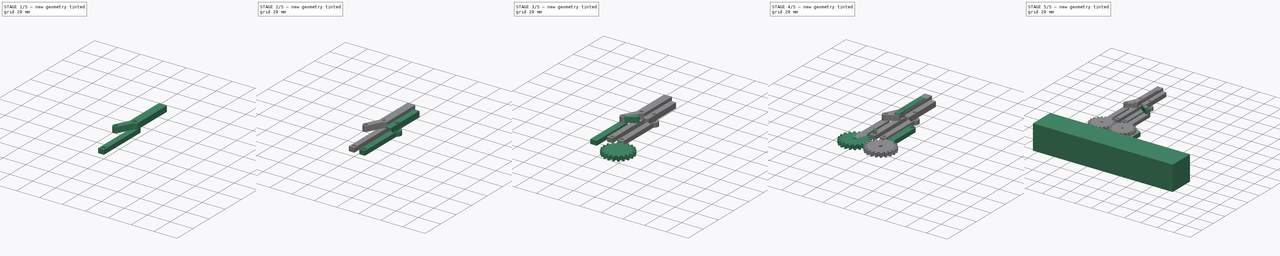
[diagram: build sequence overview — one tinted view per stage of 5, left to right]
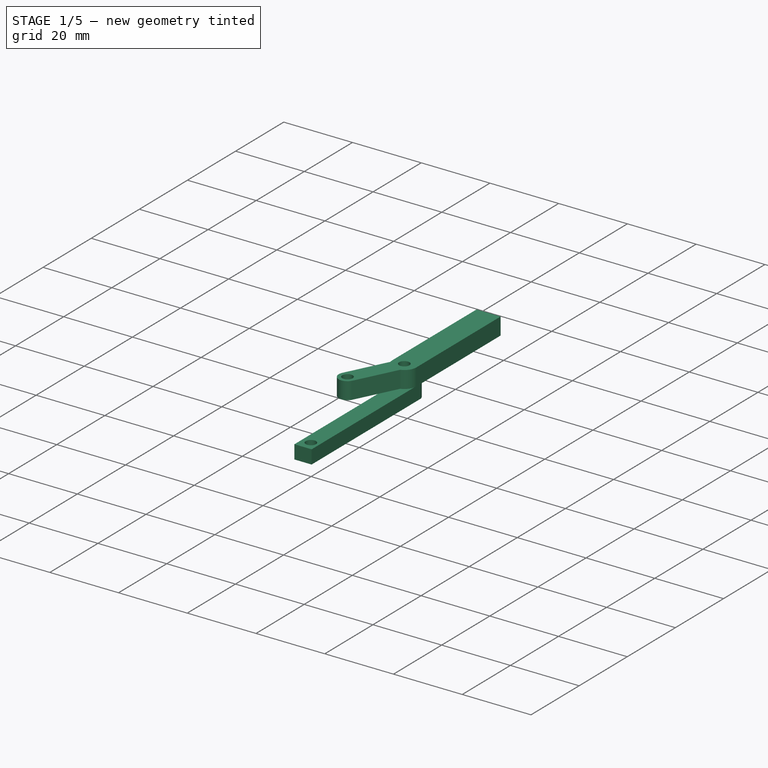
[diagram: stage 1 of 5 — iso view after this stage's code; geometry added in this stage tinted green]
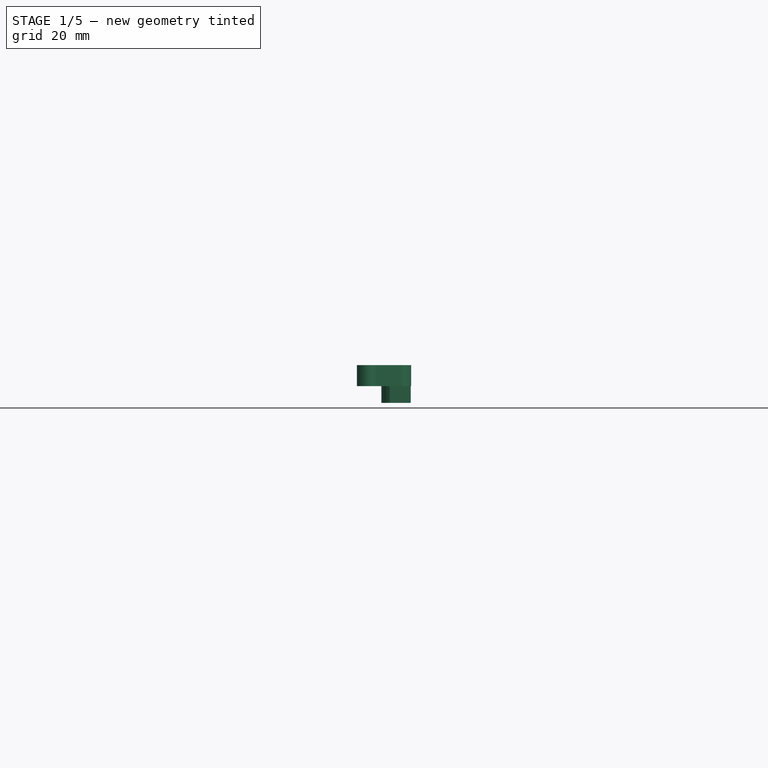
[diagram: stage 1 of 5 — front view after this stage's code; geometry added in this stage tinted green]
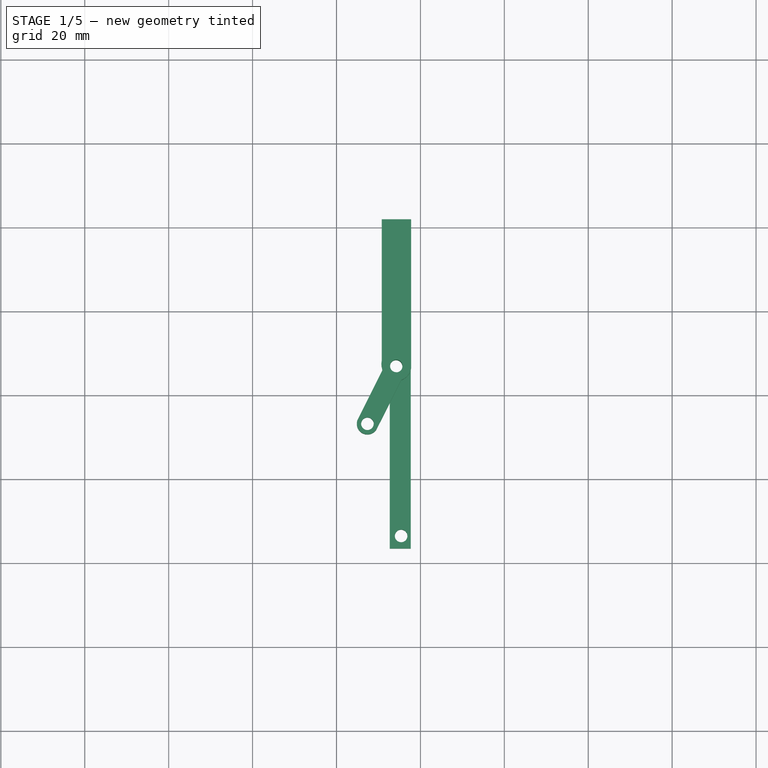
[diagram: stage 1 of 5 — top view after this stage's code; geometry added in this stage tinted green]
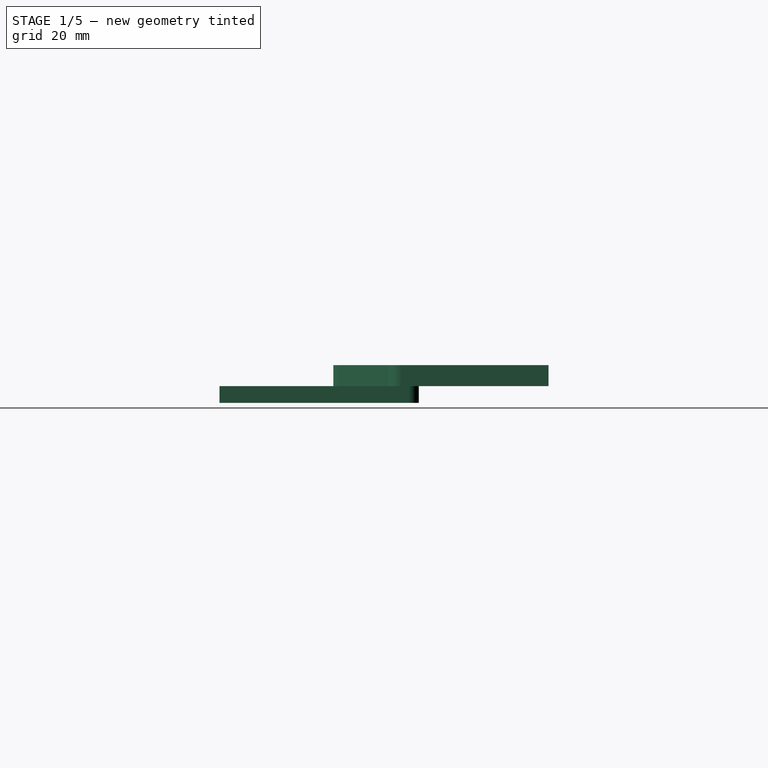
[diagram: stage 1 of 5 — right view after this stage's code; geometry added in this stage tinted green]
FCSTD DOCUMENT  (FreeCAD 0.19R24291 (Git))
Label: pinza_paralela_design_v2
License: All rights reserved
LicenseURL: http://en.wikipedia.org/wiki/All_rights_reserved
objects: Part::Cut×23, Part::Mirroring×11, Part::Extrusion×10, Sketcher::SketchObject×9, Part::Cylinder×9, Part::MultiFuse×5, Part::Part2DObjectPython×1, Part::Box×1
note: 69 computed .brp shape members not serialized (recipe doc carries the construction recipe); baked Part::Feature solids carry a one-line shape summary decoded from their .brp

FEATURE [Sketcher::SketchObject] Sketch006  label="Sk Union falanges002"
  FullyConstrained = false
  Placement = pos=(0,0,12) rot=(0,0,1;0rad)
  sketch-geometry (6):
    g0: LineSegment StartX=14.998 StartY=29.2311 StartZ=0 EndX=22.8365 EndY=15.9752 EndZ=0
    g1: LineSegment StartX=10.6425 StartY=26.6556 StartZ=0 EndX=18.481 EndY=13.3997 EndZ=0
    g2: ArcOfCircle CenterX=12.8203 CenterY=27.9434 CenterZ=0 NormalX=0 NormalY=0 NormalZ=1 AngleXU=0 Radius=2.53 StartAngle=0.534014 EndAngle=3.67561
    g3: ArcOfCircle CenterX=20.6588 CenterY=14.6875 CenterZ=0 NormalX=0 NormalY=0 NormalZ=1 AngleXU=0 Radius=2.53 StartAngle=3.67561 EndAngle=6.8172
    g4: Circle CenterX=12.8203 CenterY=27.9434 CenterZ=0 NormalX=0 NormalY=0 NormalZ=1 AngleXU=0 Radius=1.5
    g5: Circle CenterX=20.6588 CenterY=14.6875 CenterZ=0 NormalX=0 NormalY=0 NormalZ=1 AngleXU=0 Radius=1.5
  constraints (11):
    c: Distance(g0) = 15.4
    c: Parallel(g1,g0)
    c: Radius(g3) = 2.53
    c: Tangent(g0,g3) = 1.5708
    c: Tangent(g2,g0) = 1.5708
    c: Tangent(g2,g1) = -1.5708
    c: Tangent(g3,g1) = -1.5708
    c: Coincident(g4,g2)
    c: Coincident(g5,g3)
    c: Radius(g5) = 1.5
    c: Radius(g4) = 1.5
FEATURE [Part::Extrusion] Extrude008  label="extrude union der"
  Base = -> Sketch006
  Dir = (0,0,1)
  DirMode = 2
  FaceMakerClass = Part::FaceMakerBullseye
  LengthFwd = 5
  LengthRev = 0
  Placement = pos=(-3.80502,39.4438,-2) rot=(0,0,-1;0.069813rad)
  Solid = true
  Symmetric = false
FEATURE [Sketcher::SketchObject] Sketch007  label="Sk_dedos001"
  FullyConstrained = true
  sketch-geometry (5):
    g0: LineSegment StartX=-3.5 StartY=17.5 StartZ=0 EndX=3.5 EndY=17.5 EndZ=0
    g1: LineSegment StartX=3.5 StartY=17.5 StartZ=0 EndX=3.5 EndY=-17.5 EndZ=0
    g2: LineSegment StartX=-3.5 StartY=-17.5 StartZ=0 EndX=-3.5 EndY=17.5 EndZ=0
    g3: ArcOfCircle CenterX=0 CenterY=-17.5 CenterZ=0 NormalX=0 NormalY=0 NormalZ=1 AngleXU=0 Radius=3.5 StartAngle=3.14159 EndAngle=6.28319
    g4: Circle CenterX=0 CenterY=-17.5 CenterZ=0 NormalX=0 NormalY=0 NormalZ=1 AngleXU=0 Radius=1.65
  constraints (14):
    c: Coincident(g0,g1)
    c: Coincident(g2,g0)
    c: Horizontal(g0)
    c: Vertical(g1)
    c: Vertical(g2)
    c: DistanceY(g1,g1) = 35
    c: Coincident(g3,g1)
    c: DistanceX(g0,g0) = 7
    c: Symmetric(g1,g0,g-1)
    c: Angle(g3) = 3.14159
    c: Coincident(g3,g2)
    c: Equal(g2,g1)
    c: Coincident(g4,g3)
    c: Diameter(g4) = 3.3
FEATURE [Part::Extrusion] Extrude009  label="Dedo der"
  Base = -> Sketch007
  Dir = (0,0,1)
  DirMode = 2
  FaceMakerClass = Part::FaceMakerBullseye
  LengthFwd = 5
  LengthRev = 0
  Placement = pos=(10.9,83.9,10) rot=(0,0,1;0rad)
  Solid = true
  Symmetric = false
FEATURE [Part::MultiFuse] Fusion002  label="dedo_der completo"
  Placement = pos=(-5.2,0.5,-1) rot=(0,0,1;0rad)
  Refine = true
  Shapes = -> [Extrude009,Extrude008]
FEATURE [Part::Cylinder] Cylinder006
  Angle = 360
  AttacherType = Attacher::AttachEngine3D
  Height = 15
  Placement = pos=(4.5,26.5,-2) rot=(0,0,1;0rad)
  Radius = 1.5
FEATURE [Sketcher::SketchObject] Sketch008  label="sk_Falange003"
  FullyConstrained = false
  sketch-geometry (4):
    g0: LineSegment StartX=50.6953 StartY=0 StartZ=0 EndX=50.6953 EndY=45 EndZ=0
    g1: LineSegment StartX=55.6953 StartY=0 StartZ=0 EndX=55.6953 EndY=45 EndZ=0
    g2: LineSegment StartX=50.6953 StartY=0 StartZ=0 EndX=55.6953 EndY=0 EndZ=0
    g3: ArcOfCircle CenterX=53.1953 CenterY=45 CenterZ=0 NormalX=0 NormalY=0 NormalZ=1 AngleXU=0 Radius=2.5 StartAngle=5.8273e-06 EndAngle=3.14159
  constraints (12):
    c: Vertical(g0)
    c: Vertical(g1)
    c: Coincident(g2,g0)
    c: Horizontal(g2)
    c: Equal(g0,g1)
    c: Coincident(g2,g1)
    c: Distance(g0) = 45
    c: PointOnObject(g0,g-1)
    c: DistanceX(g2,g2) = 5
    c: Coincident(g3,g0)
    c: Coincident(g3,g1)
    c: Radius(g3) = 2.5
FEATURE [Part::Cylinder] Cylinder007  label="Tornillo002"
  Angle = 360
  AttacherType = Attacher::AttachEngine3D
  Height = 20
  Placement = pos=(5.7,66.9,2) rot=(0,0,1;0rad)
  Radius = 1.5
FEATURE [Part::Extrusion] Extrude010  label="Falange_interno002"
  Base = -> Sketch008
  Dir = (0,0,1)
  DirMode = 2
  FaceMakerClass = Part::FaceMakerBullseye
  LengthFwd = 4
  LengthRev = 0
  Placement = pos=(-48.5,23.5,5) rot=(0,0,1;0rad)
  Solid = true
  Symmetric = false
FEATURE [Part::Cut] Cut020  label="Falange interna der tornillo001"
  Base = -> Extrude010
  Refine = true
  Tool = -> Cylinder006
FEATURE [Part::Cut] Cut021  label="Fal interna der001"
  Base = -> Cut020
  Refine = true
  Tool = -> Cylinder007
FEATURE [Part::Cylinder] Cylinder008
  Angle = 360
  AttacherType = Attacher::AttachEngine3D
  Height = 4
  Placement = pos=(5.7,67.5,5) rot=(0,0,1;0rad)
  Radius = 3.5
FEATURE [Part::MultiFuse] Fusion004  label="Palo interno der001"
  Refine = true
  Shapes = -> [Cut021,Cylinder008]
FEATURE [Part::Cut] Cut022  label="Palo dentro izq tornillo"
  Base = -> Fusion004
  Placement = pos=(-0.1,0,14) rot=(0,1,0;3.14159rad)
  Refine = true
  Tool = -> Cylinder007
FEATURE [Part::Mirroring] Part__Mirroring010  label="dedo_der completo (Mirror #11)"
  Base = (0,0,0)
  Normal = (1,0,0)
  Source = -> Fusion002
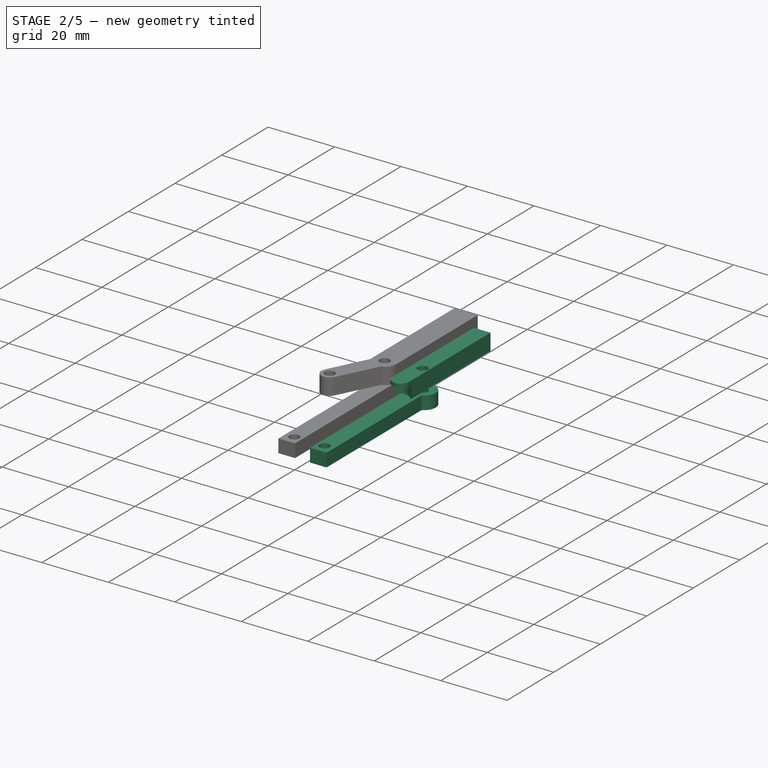
[diagram: stage 2 of 5 — iso view after this stage's code; geometry added in this stage tinted green]
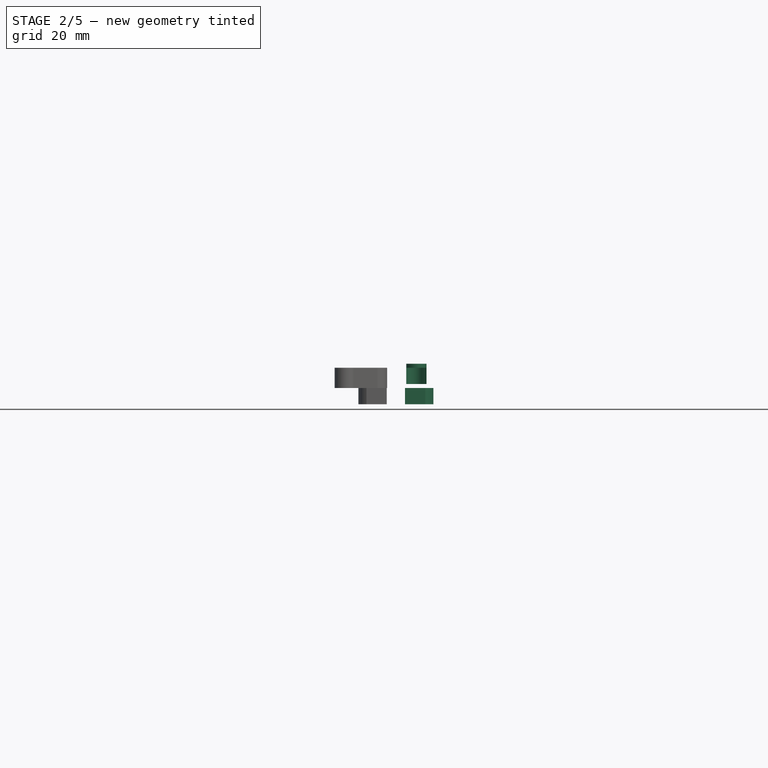
[diagram: stage 2 of 5 — front view after this stage's code; geometry added in this stage tinted green]
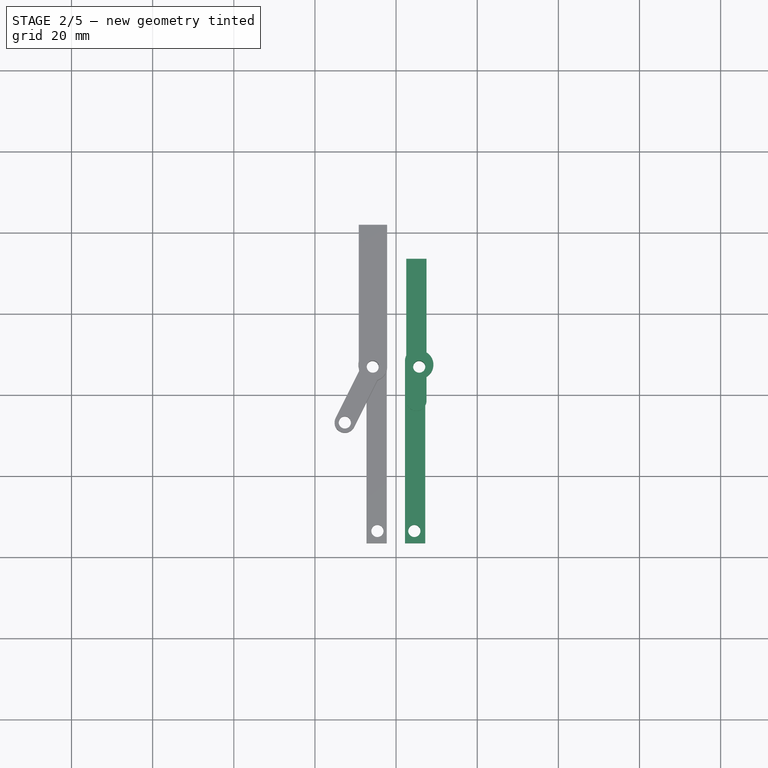
[diagram: stage 2 of 5 — top view after this stage's code; geometry added in this stage tinted green]
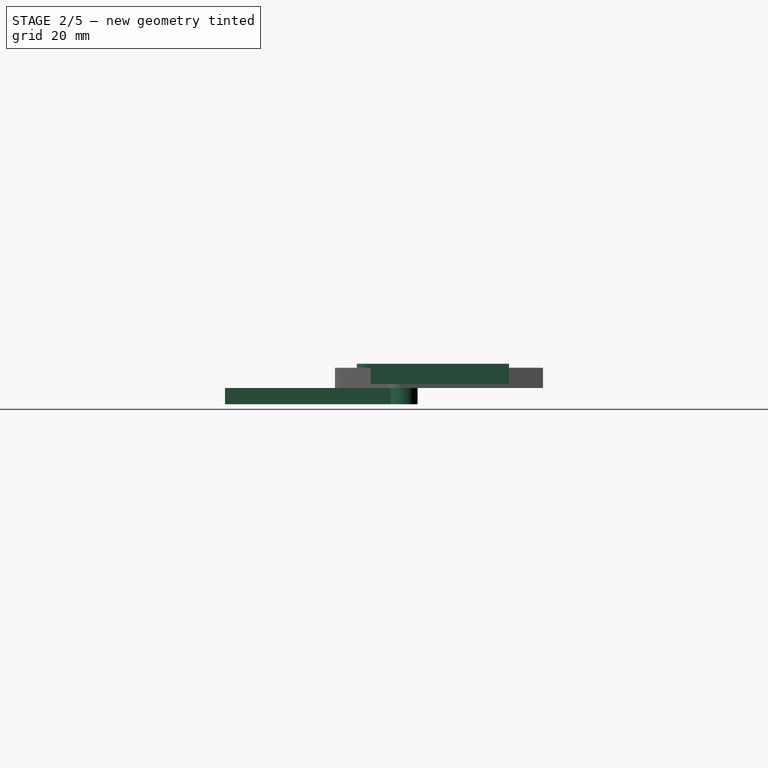
[diagram: stage 2 of 5 — right view after this stage's code; geometry added in this stage tinted green]
FEATURE [Sketcher::SketchObject] Sketch002  label="sk_Falange002"
  FullyConstrained = false
  sketch-geometry (4):
    g0: LineSegment StartX=50.6953 StartY=0 StartZ=0 EndX=50.6953 EndY=45 EndZ=0
    g1: LineSegment StartX=55.6953 StartY=0 StartZ=0 EndX=55.6953 EndY=45 EndZ=0
    g2: LineSegment StartX=50.6953 StartY=0 StartZ=0 EndX=55.6953 EndY=0 EndZ=0
    g3: ArcOfCircle CenterX=53.1953 CenterY=45 CenterZ=0 NormalX=0 NormalY=0 NormalZ=1 AngleXU=0 Radius=2.5 StartAngle=5.8273e-06 EndAngle=3.14159
  constraints (12):
    c: Vertical(g0)
    c: Vertical(g1)
    c: Coincident(g2,g0)
    c: Horizontal(g2)
    c: Equal(g0,g1)
    c: Coincident(g2,g1)
    c: Distance(g0) = 45
    c: PointOnObject(g0,g-1)
    c: DistanceX(g2,g2) = 5
    c: Coincident(g3,g0)
    c: Coincident(g3,g1)
    c: Radius(g3) = 2.5
FEATURE [Part::Extrusion] Extrude004  label="Falange_interno1"
  Base = -> Sketch002
  Dir = (0,0,1)
  DirMode = 2
  FaceMakerClass = Part::FaceMakerBullseye
  LengthFwd = 4
  LengthRev = 0
  Placement = pos=(-48.5,23.5,5) rot=(0,0,1;0rad)
  Solid = true
  Symmetric = false
FEATURE [Sketcher::SketchObject] Sketch004  label="Sk_dedos"
  FullyConstrained = true
  sketch-geometry (4):
    g0: LineSegment StartX=-2.5 StartY=17.5 StartZ=0 EndX=2.5 EndY=17.5 EndZ=0
    g1: LineSegment StartX=2.5 StartY=17.5 StartZ=0 EndX=2.5 EndY=-17.5 EndZ=0
    g2: LineSegment StartX=-2.5 StartY=-17.5 StartZ=0 EndX=-2.5 EndY=17.5 EndZ=0
    g3: ArcOfCircle CenterX=0 CenterY=-17.5 CenterZ=0 NormalX=0 NormalY=0 NormalZ=1 AngleXU=0 Radius=2.5 StartAngle=3.14159 EndAngle=6.28319
  constraints (12):
    c: Coincident(g0,g1)
    c: Coincident(g2,g0)
    c: Horizontal(g0)
    c: Vertical(g1)
    c: Vertical(g2)
    c: DistanceY(g1,g1) = 35
    c: Coincident(g3,g1)
    c: DistanceX(g0,g0) = 5
    c: Symmetric(g1,g0,g-1)
    c: Angle(g3) = 3.14159
    c: Coincident(g3,g2)
    c: Equal(g2,g1)
FEATURE [Part::Extrusion] Extrude006  label="Dedo"
  Base = -> Sketch004
  Dir = (0,0,1)
  DirMode = 2
  FaceMakerClass = Part::FaceMakerBullseye
  LengthFwd = 5
  LengthRev = 0
  Placement = pos=(5,76,10) rot=(0,0,1;0rad)
  Solid = true
  Symmetric = false
FEATURE [Sketcher::SketchObject] Sketch005  label="Sk Union falanges001"
  FullyConstrained = true
  Placement = pos=(0,0,12) rot=(0,0,1;0rad)
  sketch-geometry (4):
    g0: LineSegment StartX=6.26584 StartY=59.9849 StartZ=0 EndX=14.1491 EndY=54.8648 EndZ=0
    g1: LineSegment StartX=3.43221 StartY=55.9174 StartZ=0 EndX=11.3154 EndY=50.7973 EndZ=0
    g2: ArcOfCircle CenterX=4.58128 CenterY=58.1376 CenterZ=0 NormalX=0 NormalY=0 NormalZ=1 AngleXU=0 Radius=2.5 StartAngle=0.831422 EndAngle=4.23481
    g3: ArcOfCircle CenterX=13 CenterY=52.6446 CenterZ=0 NormalX=0 NormalY=0 NormalZ=1 AngleXU=0 Radius=2.5 StartAngle=3.97301 EndAngle=7.37641
  constraints (11):
    c: Equal(g1,g0)
    c: Coincident(g2,g1)
    c: Coincident(g2,g0)
    c: Coincident(g3,g1)
    c: Coincident(g3,g0)
    c: Distance(g0) = 9.4
    c: Equal(g3,g2)
    c: Block(g0)
    c: Block(g3)
    c: Block(g1)
    c: Block(g2)
FEATURE [Part::Extrusion] Extrude007  label="Union falange001"
  Base = -> Sketch005
  Dir = (0,0,1)
  DirMode = 2
  FaceMakerClass = Part::FaceMakerBullseye
  LengthFwd = 5
  LengthRev = 0
  Placement = pos=(0.18891,0.183964,-3) rot=(0,0,1;0rad)
  Solid = true
  Symmetric = false
FEATURE [Part::Cylinder] Cylinder002
  Angle = 360
  AttacherType = Attacher::AttachEngine3D
  Height = 15
  Placement = pos=(4.5,26.5,-2) rot=(0,0,1;0rad)
  Radius = 1.5
FEATURE [Part::Cut] Cut006  label="Falange interna der tornillo"
  Base = -> Extrude004
  Refine = true
  Tool = -> Cylinder002
FEATURE [Part::Cylinder] Cylinder004  label="Tornillo001"
  Angle = 360
  AttacherType = Attacher::AttachEngine3D
  Height = 20
  Placement = pos=(5.7,66.9,2) rot=(0,0,1;0rad)
  Radius = 1.5
FEATURE [Part::Cut] Cut015  label="Fal interna der"
  Base = -> Cut006
  Refine = true
  Tool = -> Cylinder004
FEATURE [Part::Cut] Cut  label="Dedo ajustado"
  Base = -> Extrude006
  Refine = true
  Tool = -> Extrude007
FEATURE [Part::Cut] Cut014  label="dedo der "
  Base = -> Cut
  Refine = true
  Tool = -> Cylinder004
FEATURE [Part::Cylinder] Cylinder005
  Angle = 360
  AttacherType = Attacher::AttachEngine3D
  Height = 4
  Placement = pos=(5.7,67.5,5) rot=(0,0,1;0rad)
  Radius = 3.5
FEATURE [Part::MultiFuse] Fusion003  label="Palo interno der"
  Refine = true
  Shapes = -> [Cut015,Cylinder005]
FEATURE [Part::Cut] Cut019  label="Palo dentro der tornillo"
  Base = -> Fusion003
  Refine = true
  Tool = -> Cylinder004
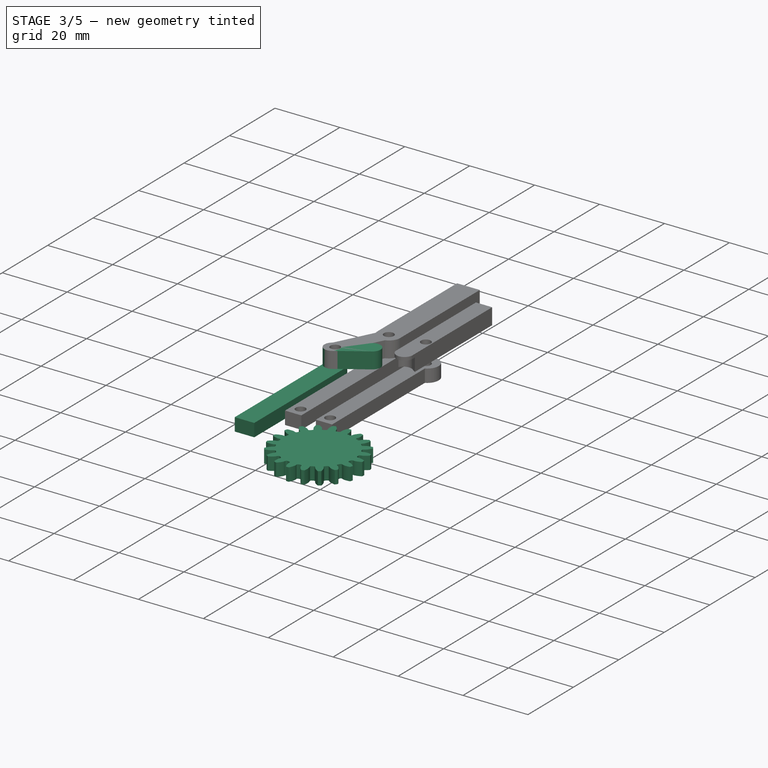
[diagram: stage 3 of 5 — iso view after this stage's code; geometry added in this stage tinted green]
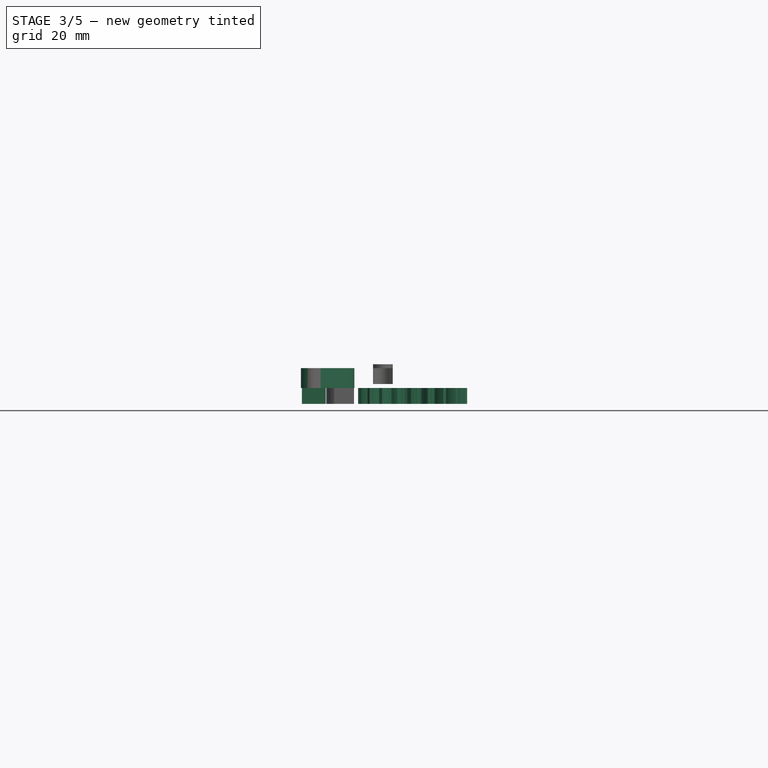
[diagram: stage 3 of 5 — front view after this stage's code; geometry added in this stage tinted green]
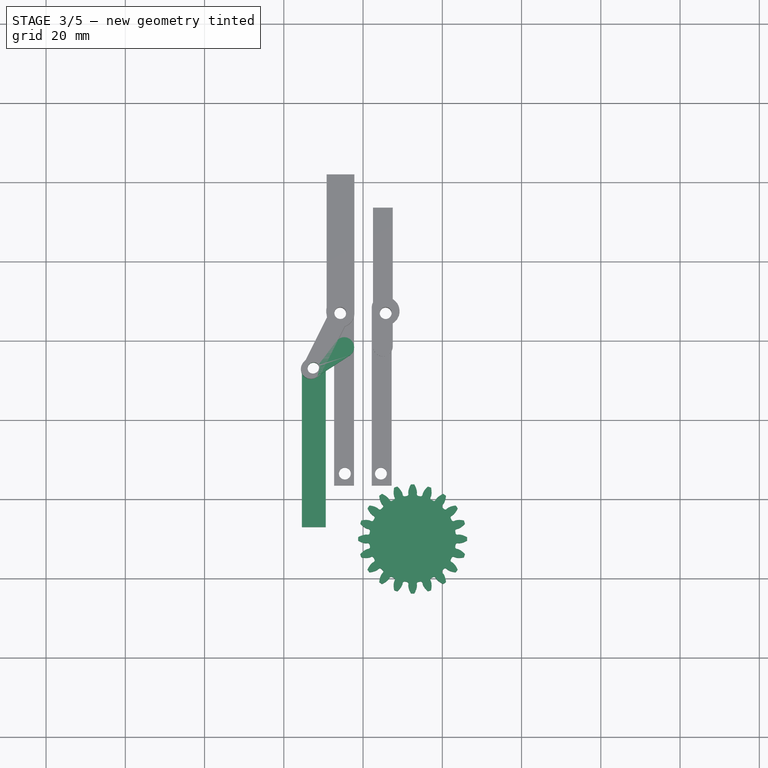
[diagram: stage 3 of 5 — top view after this stage's code; geometry added in this stage tinted green]
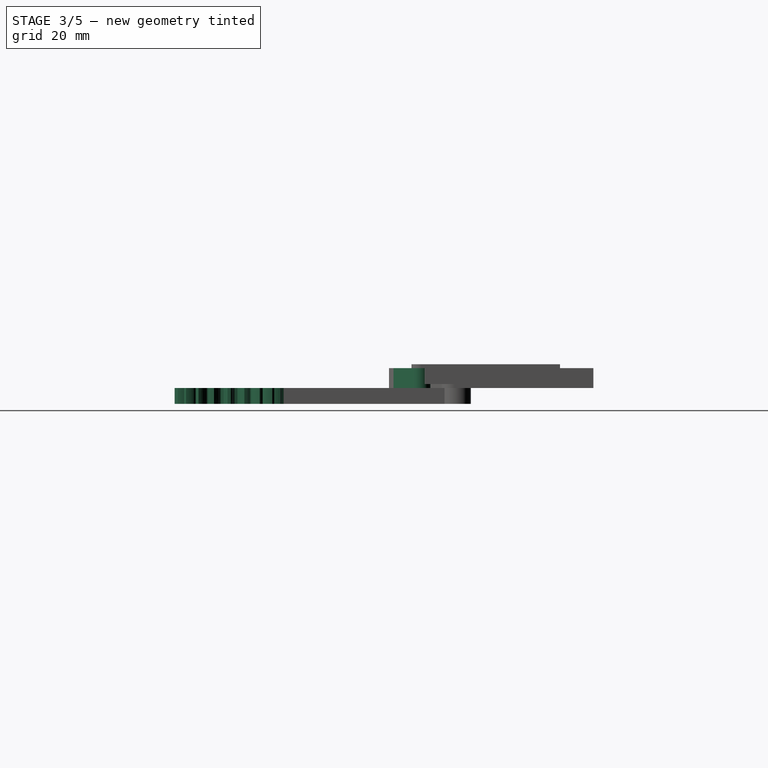
[diagram: stage 3 of 5 — right view after this stage's code; geometry added in this stage tinted green]
FEATURE [Sketcher::SketchObject] Sketch001  label="Sketch base"
  FullyConstrained = true
  sketch-geometry (6):
    g0: LineSegment StartX=-27.5 StartY=-20 StartZ=0 EndX=-27.5 EndY=20 EndZ=0
    g1: LineSegment StartX=-27.5 StartY=20 StartZ=0 EndX=-10 EndY=30.1036 EndZ=0
    g2: LineSegment StartX=-10 StartY=30.1036 StartZ=0 EndX=10 EndY=30.1036 EndZ=0
    g3: LineSegment StartX=10 StartY=30.1036 StartZ=0 EndX=27.5 EndY=20 EndZ=0
    g4: LineSegment StartX=27.5 StartY=20 StartZ=0 EndX=27.5 EndY=-20 EndZ=0
    g5: LineSegment StartX=-27.5 StartY=-20 StartZ=0 EndX=27.5 EndY=-20 EndZ=0
  constraints (17):
    c: Vertical(g0)
    c: Coincident(g1,g0)
    c: Coincident(g2,g1)
    c: Horizontal(g2)
    c: Coincident(g3,g2)
    c: Coincident(g4,g3)
    c: Equal(g0,g4)
    c: Equal(g1,g3)
    c: Vertical(g4)
    c: Coincident(g5,g0)
    c: Coincident(g5,g4)
    c: DistanceX(g5,g5) = 55
    c: DistanceY(g0,g0) = 40
    c: Parallel(g2,g5)
    c: Symmetric(g0,g4,g-1)
    c: DistanceX(g2,g2) = 20
    c: Angle(g3,g4) = 2.0944
FEATURE [Part::Extrusion] Extrude003  label="Falange1"
  Base = -> Sketch
  Dir = (0,0,1)
  DirMode = 2
  FaceMakerClass = Part::FaceMakerBullseye
  LengthFwd = 4
  LengthRev = 0
  Placement = pos=(-62.5,13,5) rot=(0,0,1;0rad)
  Solid = true
  Symmetric = false
FEATURE [Part::Mirroring] Part__Mirroring001  label="Falange1 (Mirror #2)"
  Base = (0,0,0)
  Normal = (1,0,0)
  Source = -> Extrude003
FEATURE [Sketcher::SketchObject] Sketch003  label="Sk Union falanges"
  FullyConstrained = true
  Placement = pos=(0,0,12) rot=(0,0,1;0rad)
  sketch-geometry (4):
    g0: LineSegment StartX=6.26584 StartY=59.9849 StartZ=0 EndX=14.1491 EndY=54.8648 EndZ=0
    g1: LineSegment StartX=3.43221 StartY=55.9174 StartZ=0 EndX=11.3154 EndY=50.7973 EndZ=0
    g2: ArcOfCircle CenterX=4.58128 CenterY=58.1376 CenterZ=0 NormalX=0 NormalY=0 NormalZ=1 AngleXU=0 Radius=2.5 StartAngle=0.831422 EndAngle=4.23481
    g3: ArcOfCircle CenterX=13 CenterY=52.6446 CenterZ=0 NormalX=0 NormalY=0 NormalZ=1 AngleXU=0 Radius=2.5 StartAngle=3.97301 EndAngle=7.37641
  constraints (11):
    c: Equal(g1,g0)
    c: Coincident(g2,g1)
    c: Coincident(g2,g0)
    c: Coincident(g3,g1)
    c: Coincident(g3,g0)
    c: Distance(g0) = 9.4
    c: Equal(g3,g2)
    c: Block(g0)
    c: Block(g3)
    c: Block(g1)
    c: Block(g2)
FEATURE [Part::Extrusion] Extrude005  label="Union falange"
  Base = -> Sketch003
  Dir = (0,0,1)
  DirMode = 2
  FaceMakerClass = Part::FaceMakerBullseye
  LengthFwd = 5
  LengthRev = 0
  Placement = pos=(0.18891,0.183964,-3) rot=(0,0,1;0rad)
  Solid = true
  Symmetric = false
FEATURE [Part::Mirroring] Part__Mirroring003  label="Union falange (Mirror #4)"
  Base = (0,0,0)
  Normal = (1,0,0)
  Source = -> Extrude005
FEATURE [Part::Extrusion] Extrude  label="Engranaje 1"
  Base = -> InvoluteGear
  Dir = (0,0,1)
  DirMode = 2
  FaceMakerClass = Part::FaceMakerBullseye
  LengthFwd = 4
  LengthRev = 0
  Placement = pos=(12.5,10,5) rot=(0,0,1;0rad)
  Solid = true
  Symmetric = false
FEATURE [Part::Cylinder] Cylinder003  label="Tornillo"
  Angle = 360
  AttacherType = Attacher::AttachEngine3D
  Height = 15
  Placement = pos=(12.5,53,4) rot=(0,0,1;0rad)
  Radius = 1.5
FEATURE [Part::Mirroring] Part__Mirroring008  label="Tornillo (Mirror #9)"
  Base = (0,0,0)
  Normal = (1,0,0)
  Source = -> Cylinder003
FEATURE [Part::Cut] Cut011  label="Fal izq torn"
  Base = -> Part__Mirroring001
  Refine = true
  Tool = -> Part__Mirroring008
FEATURE [Part::Cut] Cut012  label="Union izq tornillo"
  Base = -> Part__Mirroring003
  Refine = true
  Tool = -> Part__Mirroring008
FEATURE [Part::Mirroring] Part__Mirroring009  label="Tornillo001 (Mirror #10)"
  Base = (0,0,0)
  Normal = (1,0,0)
  Source = -> Cylinder004
FEATURE [Part::Cut] Cut017  label="Union izq completa"
  Base = -> Cut012
  Refine = true
  Tool = -> Part__Mirroring009
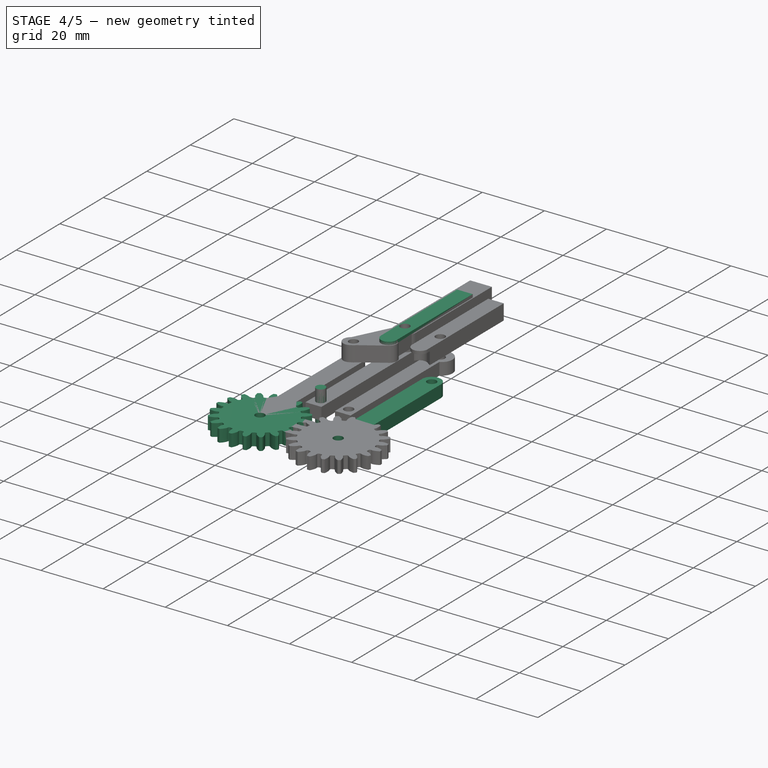
[diagram: stage 4 of 5 — iso view after this stage's code; geometry added in this stage tinted green]
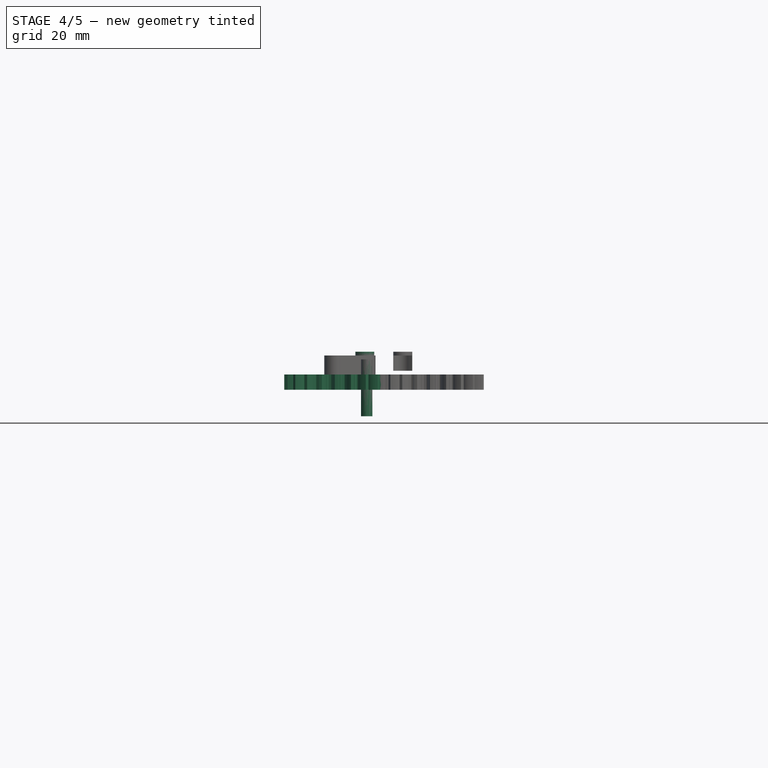
[diagram: stage 4 of 5 — front view after this stage's code; geometry added in this stage tinted green]
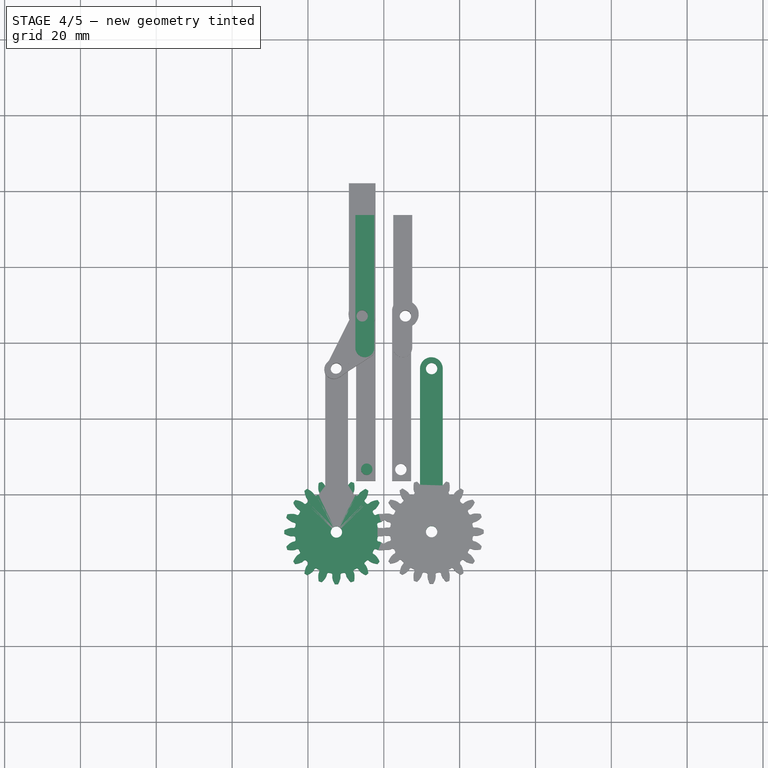
[diagram: stage 4 of 5 — top view after this stage's code; geometry added in this stage tinted green]
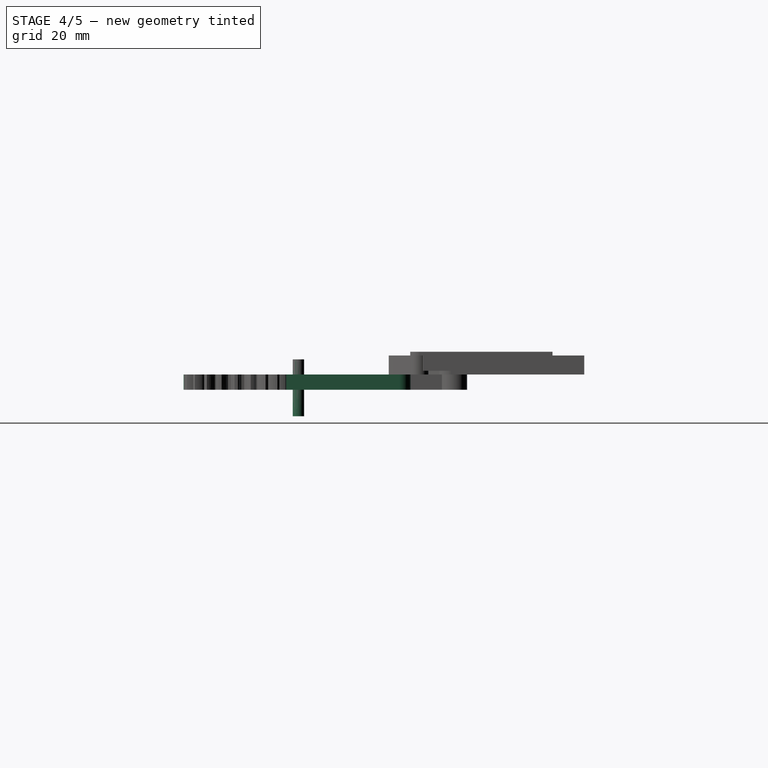
[diagram: stage 4 of 5 — right view after this stage's code; geometry added in this stage tinted green]
FEATURE [Part::Mirroring] Part__Mirroring002  label="Falange_interno1 (Mirror #3)"
  Base = (0,0,0)
  Normal = (1,0,0)
  Source = -> Extrude004
FEATURE [Part::Cylinder] Cylinder001  label="Cylinder"
  Angle = 360
  AttacherType = Attacher::AttachEngine3D
  Height = 15
  Placement = pos=(12.5,10,-1) rot=(0,0,1;0rad)
  Radius = 1.5
FEATURE [Part::Mirroring] Part__Mirroring006  label="Cylinder (Mirror #7)"
  Base = (0,0,0)
  Normal = (1,0,0)
  Source = -> Cylinder001
FEATURE [Part::Mirroring] Part__Mirroring  label="Engranaje 1 (Mirror #1)"
  Base = (0,0,0)
  Normal = (1,0,0)
  Source = -> Extrude
FEATURE [Part::Cut] Cut003  label="Engranaje der tornillo"
  Base = -> Extrude
  Refine = true
  Tool = -> Cylinder001
FEATURE [Part::Cut] Cut004  label="Engranaje izq tornillo"
  Base = -> Part__Mirroring
  Refine = true
  Tool = -> Part__Mirroring006
FEATURE [Part::Mirroring] Part__Mirroring007  label="Cylinder002 (Mirror #8)"
  Base = (0,0,0)
  Normal = (1,0,0)
  Source = -> Cylinder002
FEATURE [Part::Cut] Cut009  label="Fal der tornillo"
  Base = -> Extrude003
  Refine = true
  Tool = -> Cylinder003
FEATURE [Part::MultiFuse] Fusion  label="Eng/fal der"
  Placement = pos=(0.110007,0.09905,0) rot=(0,0,1;0rad)
  Refine = true
  Shapes = -> [Cut003,Cut009]
FEATURE [Part::MultiFuse] Fusion001  label="Eng/fal izq"
  Refine = true
  Shapes = -> [Cut011,Cut004]
FEATURE [Part::Mirroring] Part__Mirroring004  label="Dedo ajustado (Mirror #5)"
  Base = (0,0,0)
  Normal = (1,0,0)
  Source = -> Cut
FEATURE [Part::Cut] Cut018  label="dedo izq"
  Base = -> Part__Mirroring004
  Refine = true
  Tool = -> Part__Mirroring009
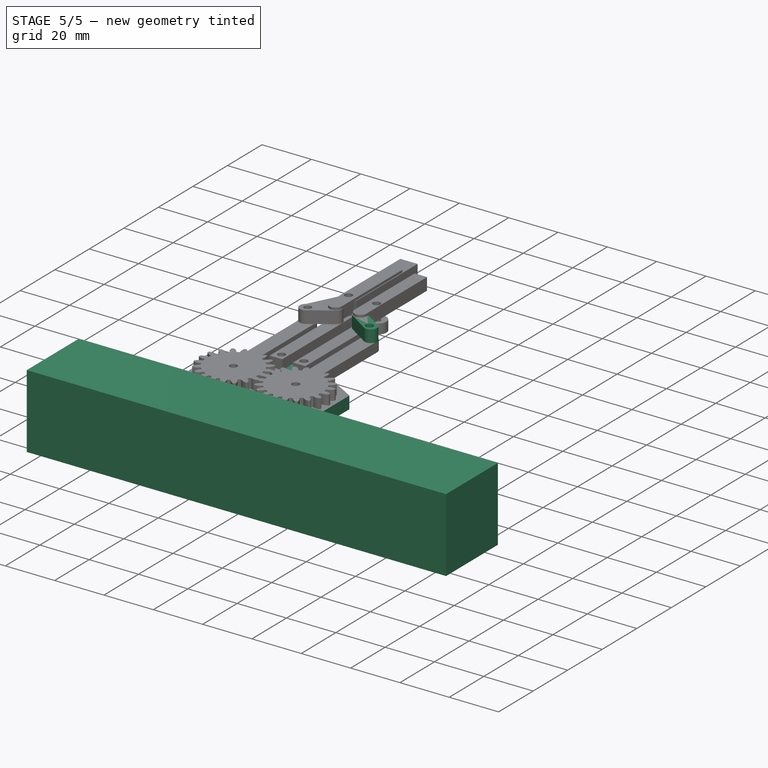
[diagram: stage 5 of 5 — iso view after this stage's code; geometry added in this stage tinted green]
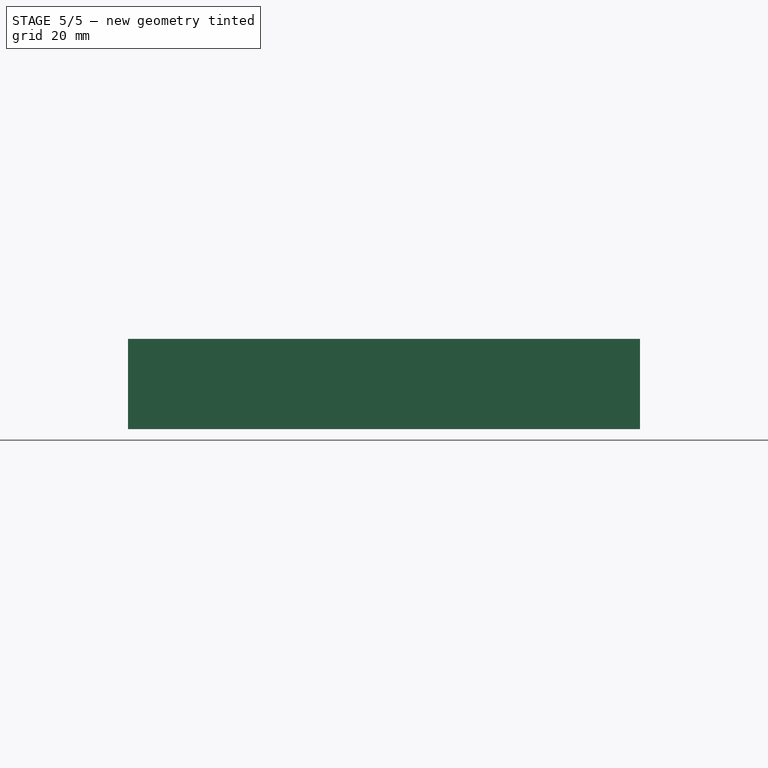
[diagram: stage 5 of 5 — front view after this stage's code; geometry added in this stage tinted green]
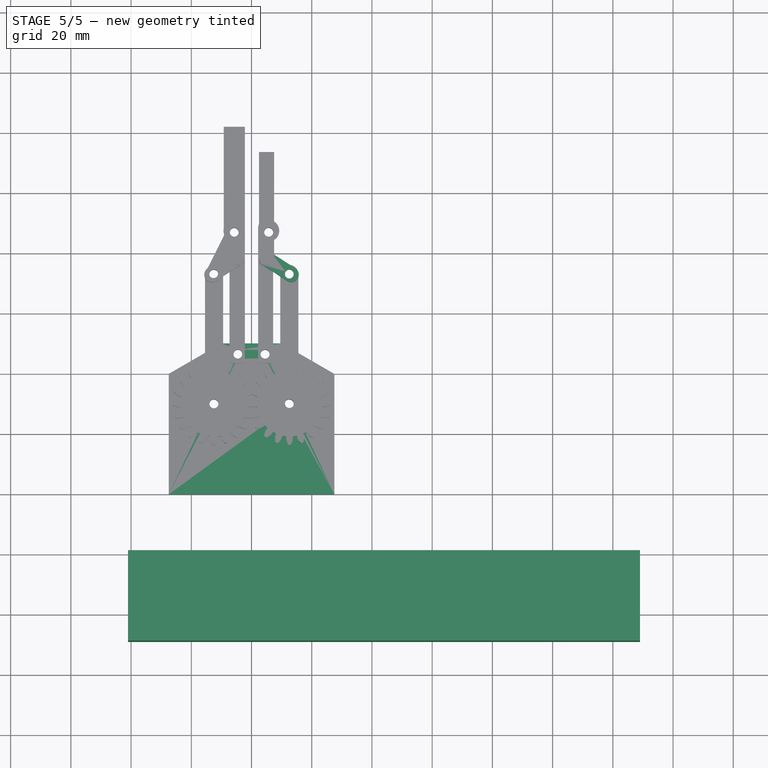
[diagram: stage 5 of 5 — top view after this stage's code; geometry added in this stage tinted green]
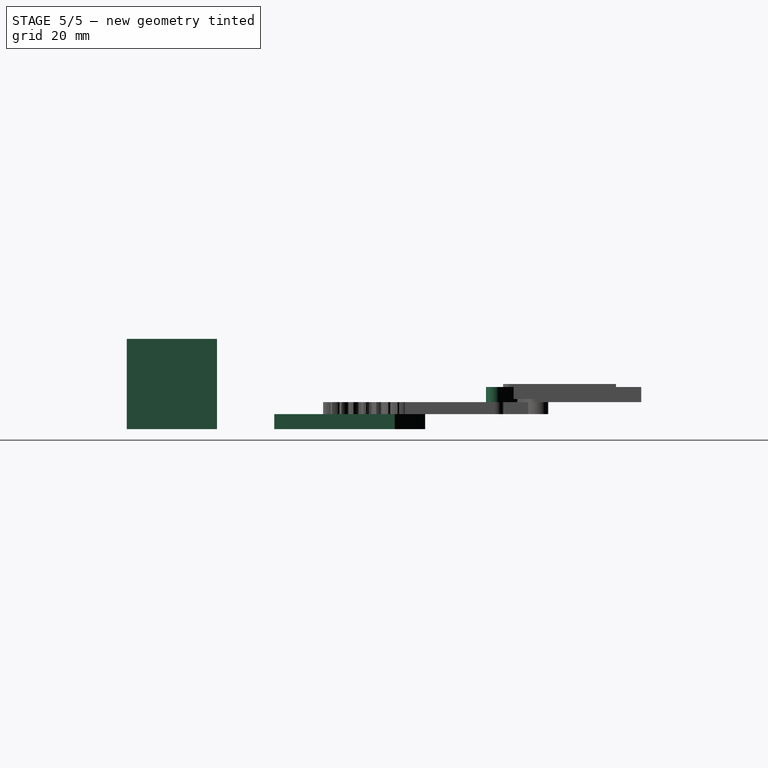
[diagram: stage 5 of 5 — right view after this stage's code; geometry added in this stage tinted green]
FEATURE [Sketcher::SketchObject] Sketch  label="sk_Falange1"
  FullyConstrained = false
  sketch-geometry (4):
    g0: LineSegment StartX=71.9329 StartY=0 StartZ=0 EndX=71.9329 EndY=40 EndZ=0
    g1: LineSegment StartX=77.9329 StartY=0 StartZ=0 EndX=77.9329 EndY=40 EndZ=0
    g2: LineSegment StartX=71.9329 StartY=0 StartZ=0 EndX=77.9329 EndY=0 EndZ=0
    g3: ArcOfCircle CenterX=74.9329 CenterY=40 CenterZ=0 NormalX=0 NormalY=0 NormalZ=1 AngleXU=0 Radius=3 StartAngle=6.28319 EndAngle=9.42478
  constraints (11):
    c: Vertical(g0)
    c: Vertical(g1)
    c: Horizontal(g2)
    c: Equal(g0,g1)
    c: Distance(g0) = 40
    c: Distance(g2) = 6
    c: Coincident(g3,g0)
    c: Coincident(g3,g1)
    c: Radius(g3) = 3
    c: Coincident(g2,g0)
    c: Coincident(g1,g2)
FEATURE [Part::Part2DObjectPython] InvoluteGear  # Draft 2D object (typed FeaturePython)
  ExternalGear = true
  HighPrecision = true
  Modules = 1.25
  NumberOfTeeth = 20
  PressureAngle = 20
FEATURE [Part::Box] Box  label="Cube"
  AttacherType = Attacher::AttachEngine3D
  Height = 30
  Length = 170
  Placement = pos=(-41,-69,0) rot=(0,0,1;0rad)
  Width = 30
FEATURE [Part::Extrusion] Extrude002  label="Base"
  Base = -> Sketch001
  Dir = (0,0,1)
  DirMode = 2
  FaceMakerClass = Part::FaceMakerBullseye
  LengthFwd = 5
  LengthRev = 0
  Solid = true
  Symmetric = false
FEATURE [Part::Cylinder] Cylinder  label="Hueco tornillo"
  Angle = 360
  AttacherType = Attacher::AttachEngine3D
  Height = 15
  Placement = pos=(12.5,10,-1) rot=(0,0,1;0rad)
  Radius = 1.5
FEATURE [Part::Mirroring] Part__Mirroring005  label="Hueco tornillo (Mirror #6)"
  Base = (0,0,0)
  Normal = (1,0,0)
  Source = -> Cylinder
FEATURE [Part::Cut] Cut001  label="tornillo derecha"
  Base = -> Extrude002
  Refine = true
  Tool = -> Cylinder
FEATURE [Part::Cut] Cut002  label="Base tornillos"
  Base = -> Cut001
  Refine = true
  Tool = -> Part__Mirroring005
FEATURE [Part::Cut] Cut005  label="Base tornillo interno1"
  Base = -> Cut002
  Refine = true
  Tool = -> Cylinder002
FEATURE [Part::Cut] Cut007  label="Base tornillos dedos"
  Base = -> Cut005
  Refine = true
  Tool = -> Part__Mirroring007
FEATURE [Part::Cut] Cut008  label="Falange izq interna tornillo"
  Base = -> Part__Mirroring002
  Refine = true
  Tool = -> Part__Mirroring007
FEATURE [Part::Cut] Cut010  label="Union der tornillo"
  Base = -> Extrude005
  Refine = true
  Tool = -> Cylinder003
FEATURE [Part::Cut] Cut013  label="Union der completa"
  Base = -> Cut010
  Refine = true
  Tool = -> Cylinder004
FEATURE [Part::Cut] Cut016  label="Fal interna izq"
  Base = -> Cut008
  Refine = true
  Tool = -> Part__Mirroring009
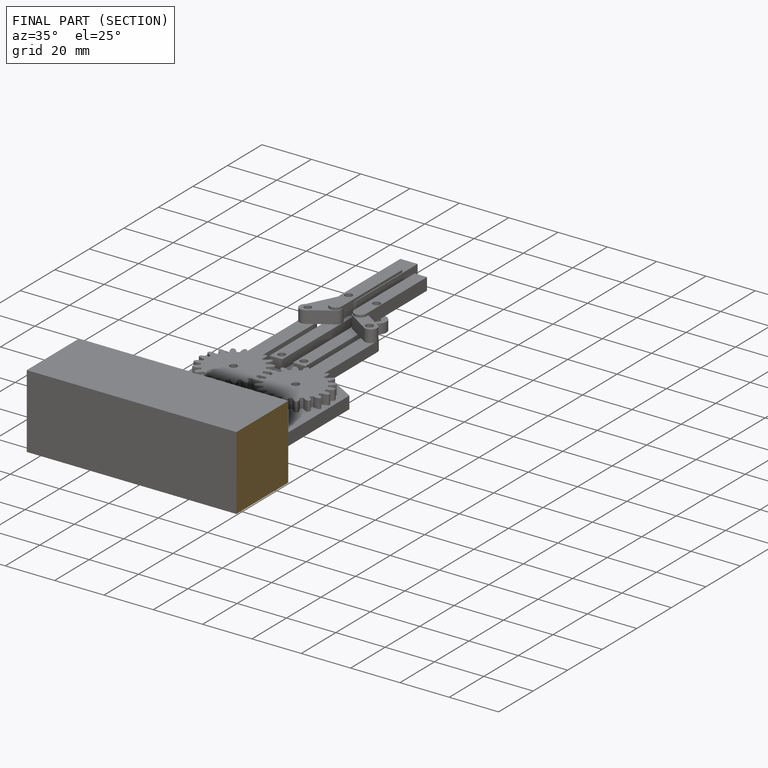
[diagram: finished part — half-section view (interior)]
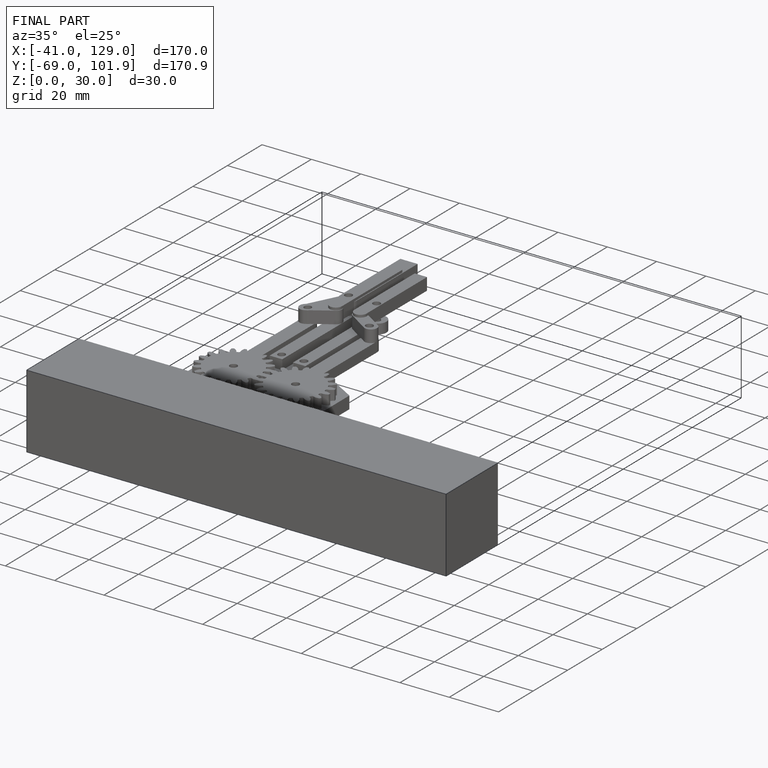
[diagram: finished part — iso view with bounding-box wireframe]
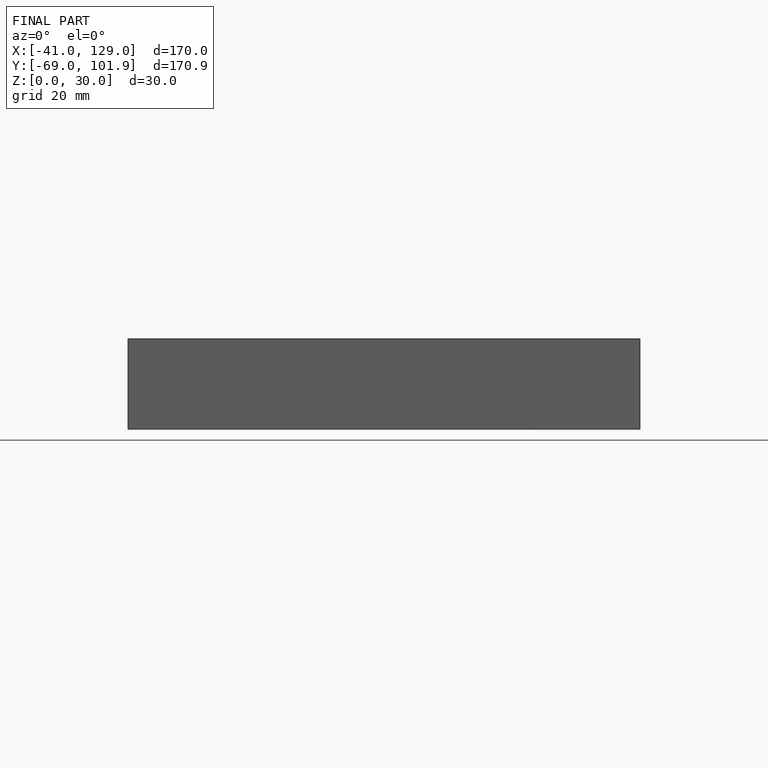
[diagram: finished part — front view with bounding-box wireframe]
